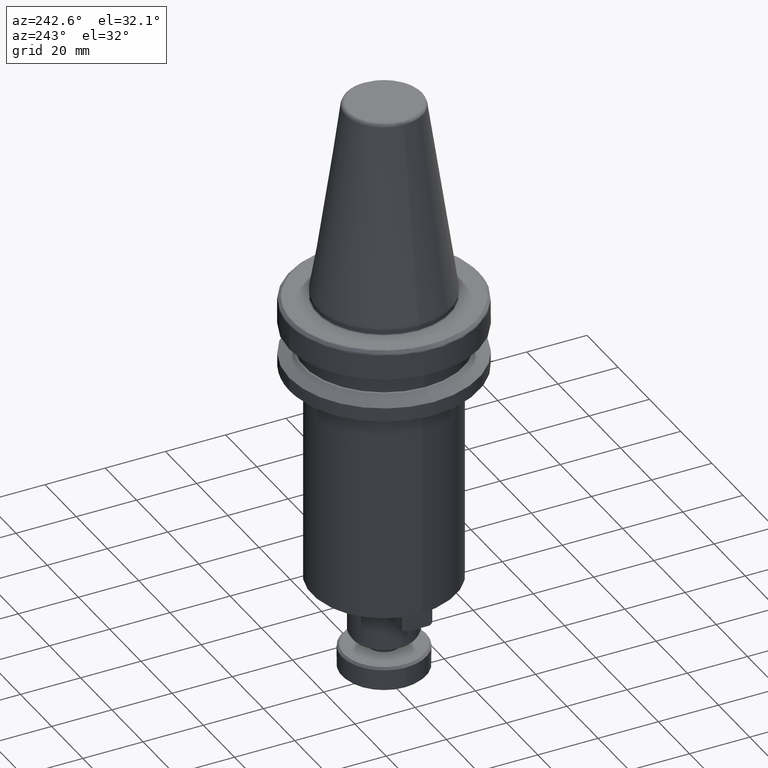
[diagram: clean part render]
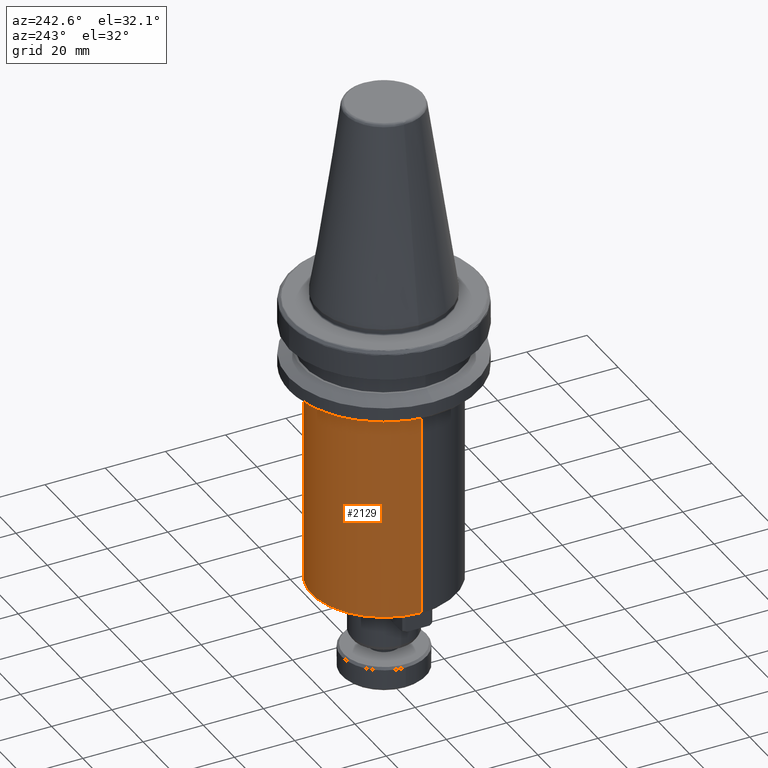
[diagram: same view with one face highlighted and labeled with its STEP entity id]
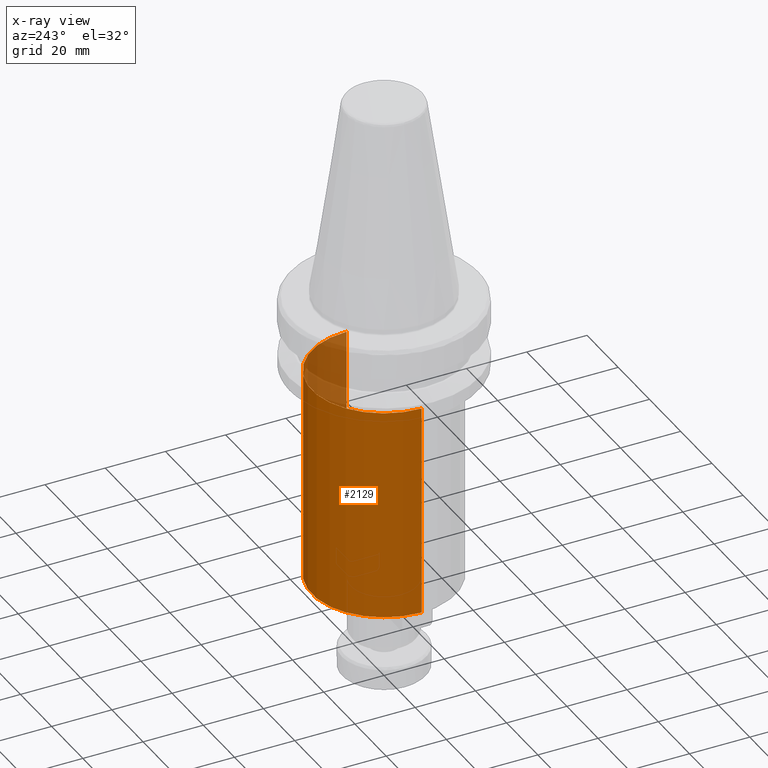
[diagram: x-ray of the same camera — body ghosted, the highlighted face saturated]
A machine part, auxiliary view. The second image highlights one B-rep face of the part: STEP entity #2129.
The next image is the same camera in x-ray: the body ghosted, the highlighted face saturated — about 9% of this face is hidden behind the body in this view.
In plain terms, the highlighted cylindrical surface (partial cylindrical patch) has radius 24 mm, axis along (0, -0, 1).
Its self-contained STEP definition (entity closure, byte-faithful):
#92 = CARTESIAN_POINT ( 'NONE',  ( 24.00000000000000000, 0.0000000000000000000, -99.00000000000000000 ) ) ;
#263 = CARTESIAN_POINT ( 'NONE',  ( -24.00000000000000000, 2.939152317953647900E-015, -99.00000000000000000 ) ) ;
#420 = DIRECTION ( 'NONE',  ( 0.0000000000000000000, -0.0000000000000000000, 1.000000000000000000 ) ) ;
#449 = EDGE_LOOP ( 'NONE', ( #1198, #1296, #1342, #1387 ) ) ;
#525 = CARTESIAN_POINT ( 'NONE',  ( 24.00000000005126600, -1.077523541144796300E-009, -27.99999999999999600 ) ) ;
#596 = EDGE_CURVE ( 'NONE', #2263, #2406, #1502, .T. ) ;
#724 = FACE_OUTER_BOUND ( 'NONE', #449, .T. ) ;
#756 = CYLINDRICAL_SURFACE ( 'NONE', #1827, 24.00000000000000000 ) ;
#970 = LINE ( 'NONE', #1084, #1009 ) ;
#1009 = VECTOR ( 'NONE', #1079, 1000.000000000000000 ) ;
#1079 = DIRECTION ( 'NONE',  ( 0.0000000000000000000, -0.0000000000000000000, 1.000000000000000000 ) ) ;
#1084 = CARTESIAN_POINT ( 'NONE',  ( 24.00000000000000000, 0.0000000000000000000, -99.00000000000000000 ) ) ;
#1198 = ORIENTED_EDGE ( 'NONE', *, *, #2780, .T. ) ;
#1296 = ORIENTED_EDGE ( 'NONE', *, *, #596, .T. ) ;
#1342 = ORIENTED_EDGE ( 'NONE', *, *, #2746, .F. ) ;
#1365 = AXIS2_PLACEMENT_3D ( 'NONE', #2496, #2497, #2528 ) ;
#1387 = ORIENTED_EDGE ( 'NONE', *, *, #2401, .F. ) ;
#1412 = AXIS2_PLACEMENT_3D ( 'NONE', #2297, #2302, #2304 ) ;
#1502 = LINE ( 'NONE', #263, #1509 ) ;
#1509 = VECTOR ( 'NONE', #420, 1000.000000000000000 ) ;
#1531 = CARTESIAN_POINT ( 'NONE',  ( -24.00000000005126600, -7.383723426551921600E-009, -27.99999999996670400 ) ) ;
#1658 = DIRECTION ( 'NONE',  ( 0.0000000000000000000, -0.0000000000000000000, 1.000000000000000000 ) ) ;
#1664 = DIRECTION ( 'NONE',  ( 1.000000000000000000, 0.0000000000000000000, 0.0000000000000000000 ) ) ;
#1667 = CARTESIAN_POINT ( 'NONE',  ( 0.0000000000000000000, 0.0000000000000000000, -99.00000000000000000 ) ) ;
#1827 = AXIS2_PLACEMENT_3D ( 'NONE', #1667, #1658, #1664 ) ;
#1830 = CIRCLE ( 'NONE', #1365, 24.00000000000000000 ) ;
#1856 = CIRCLE ( 'NONE', #1412, 24.00000000000000000 ) ;
#2129 = ADVANCED_FACE ( 'NONE', ( #724 ), #756, .T. ) ;
#2263 = VERTEX_POINT ( 'NONE', #3277 ) ;
#2297 = CARTESIAN_POINT ( 'NONE',  ( 0.0000000000000000000, 0.0000000000000000000, -27.99999999999999600 ) ) ;
#2302 = DIRECTION ( 'NONE',  ( 0.0000000000000000000, 0.0000000000000000000, 1.000000000000000000 ) ) ;
#2304 = DIRECTION ( 'NONE',  ( 1.000000000000000000, 0.0000000000000000000, -1.445602896647339200E-016 ) ) ;
#2401 = EDGE_CURVE ( 'NONE', #3128, #3269, #970, .T. ) ;
#2406 = VERTEX_POINT ( 'NONE', #1531 ) ;
#2496 = CARTESIAN_POINT ( 'NONE',  ( 0.0000000000000000000, 0.0000000000000000000, -98.99999999999997200 ) ) ;
#2497 = DIRECTION ( 'NONE',  ( 0.0000000000000000000, 0.0000000000000000000, 1.000000000000000000 ) ) ;
#2528 = DIRECTION ( 'NONE',  ( 1.000000000000000000, 0.0000000000000000000, -1.156482317317871300E-015 ) ) ;
#2746 = EDGE_CURVE ( 'NONE', #3269, #2406, #1856, .T. ) ;
#2780 = EDGE_CURVE ( 'NONE', #3128, #2263, #1830, .T. ) ;
#3128 = VERTEX_POINT ( 'NONE', #92 ) ;
#3269 = VERTEX_POINT ( 'NONE', #525 ) ;
#3277 = CARTESIAN_POINT ( 'NONE',  ( -24.00000000000000000, 2.939152317953647900E-015, -98.99999999999997200 ) ) ;